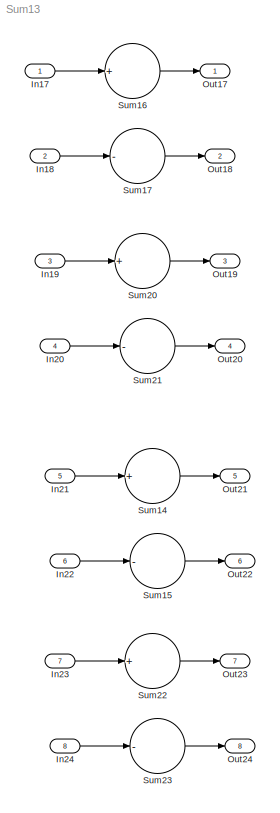
MODEL Sum13
KIND model
BLOCK [Inport] In17
  IconDisplay = Port number
  OutDataTypeStr = int32
  SID = 1
BLOCK [Inport] In18
  IconDisplay = Port number
  OutDataTypeStr = int32
  Port = 2
  SID = 2
BLOCK [Inport] In19
  IconDisplay = Port number
  OutDataTypeStr = int32
  Port = 3
  PortDimensions = 3
  SID = 3
BLOCK [Inport] In20
  IconDisplay = Port number
  OutDataTypeStr = int32
  Port = 4
  PortDimensions = 3
  SID = 4
BLOCK [Inport] In21
  IconDisplay = Port number
  OutDataTypeStr = int32
  Port = 5
  PortDimensions = [2 3]
  SID = 5
BLOCK [Inport] In22
  IconDisplay = Port number
  OutDataTypeStr = int32
  Port = 6
  PortDimensions = [2 3]
  SID = 6
BLOCK [Inport] In23
  IconDisplay = Port number
  OutDataTypeStr = int32
  Port = 7
  PortDimensions = [2 3 2 3]
  SID = 7
BLOCK [Inport] In24
  IconDisplay = Port number
  OutDataTypeStr = int32
  Port = 8
  PortDimensions = [2 3]
  SID = 8
BLOCK [Outport] Out17
  IconDisplay = Port number
  SID = 17
BLOCK [Outport] Out18
  IconDisplay = Port number
  Port = 2
  SID = 18
BLOCK [Outport] Out19
  IconDisplay = Port number
  Port = 3
  SID = 19
BLOCK [Outport] Out20
  IconDisplay = Port number
  Port = 4
  SID = 20
BLOCK [Outport] Out21
  IconDisplay = Port number
  Port = 5
  SID = 21
BLOCK [Outport] Out22
  IconDisplay = Port number
  Port = 6
  SID = 22
BLOCK [Outport] Out23
  IconDisplay = Port number
  Port = 7
  SID = 23
BLOCK [Outport] Out24
  IconDisplay = Port number
  Port = 8
  SID = 24
BLOCK [Sum] Sum14
  CollapseMode = Specified dimension
  InputSameDT = off
  Inputs = +
  OutDataTypeStr = Inherit: Inherit via internal rule
  Ports = [1, 1]
  SID = 9
  SaturateOnIntegerOverflow = off
BLOCK [Sum] Sum15
  CollapseMode = Specified dimension
  InputSameDT = off
  Inputs = -
  OutDataTypeStr = Inherit: Inherit via internal rule
  Ports = [1, 1]
  SID = 10
  SaturateOnIntegerOverflow = off
BLOCK [Sum] Sum16
  CollapseMode = Specified dimension
  InputSameDT = off
  Inputs = +
  OutDataTypeStr = Inherit: Inherit via internal rule
  Ports = [1, 1]
  SID = 11
  SaturateOnIntegerOverflow = off
BLOCK [Sum] Sum17
  CollapseMode = Specified dimension
  InputSameDT = off
  Inputs = -
  OutDataTypeStr = Inherit: Inherit via internal rule
  Ports = [1, 1]
  SID = 12
  SaturateOnIntegerOverflow = off
BLOCK [Sum] Sum20
  CollapseMode = Specified dimension
  InputSameDT = off
  Inputs = +
  OutDataTypeStr = Inherit: Inherit via internal rule
  Ports = [1, 1]
  SID = 13
  SaturateOnIntegerOverflow = off
BLOCK [Sum] Sum21
  CollapseMode = Specified dimension
  InputSameDT = off
  Inputs = -
  OutDataTypeStr = Inherit: Inherit via internal rule
  Ports = [1, 1]
  SID = 14
  SaturateOnIntegerOverflow = off
BLOCK [Sum] Sum22
  CollapseDim = 4
  CollapseMode = Specified dimension
  InputSameDT = off
  Inputs = +
  OutDataTypeStr = Inherit: Inherit via internal rule
  Ports = [1, 1]
  SID = 15
  SaturateOnIntegerOverflow = off
BLOCK [Sum] Sum23
  CollapseDim = 2
  CollapseMode = Specified dimension
  InputSameDT = off
  Inputs = -
  OutDataTypeStr = Inherit: Inherit via internal rule
  Ports = [1, 1]
  SID = 16
  SaturateOnIntegerOverflow = off
LINE In17:1 -> Sum16:1
LINE In18:1 -> Sum17:1
LINE In19:1 -> Sum20:1
LINE In20:1 -> Sum21:1
LINE In21:1 -> Sum14:1
LINE In22:1 -> Sum15:1
LINE In23:1 -> Sum22:1
LINE In24:1 -> Sum23:1
LINE Sum14:1 -> Out21:1
LINE Sum15:1 -> Out22:1
LINE Sum16:1 -> Out17:1
LINE Sum17:1 -> Out18:1
LINE Sum20:1 -> Out19:1
LINE Sum21:1 -> Out20:1
LINE Sum22:1 -> Out23:1
LINE Sum23:1 -> Out24:1
